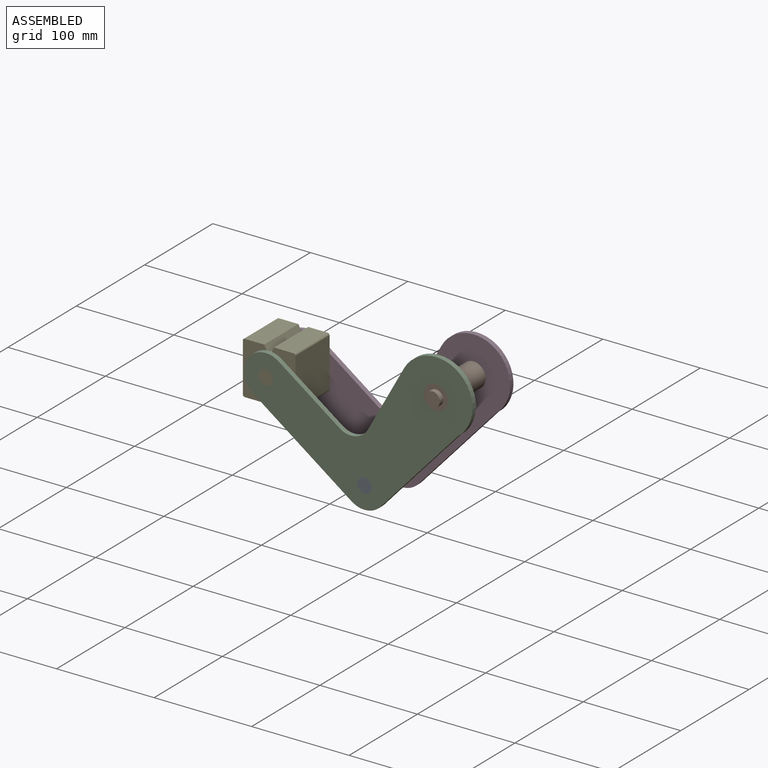
[diagram: assembled view]
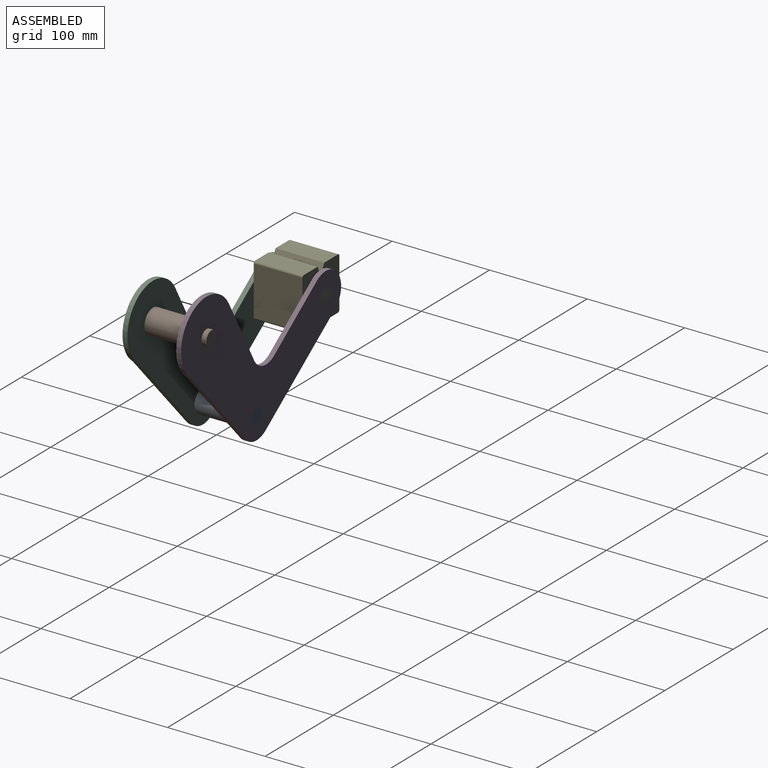
[diagram: assembled view, second angle]
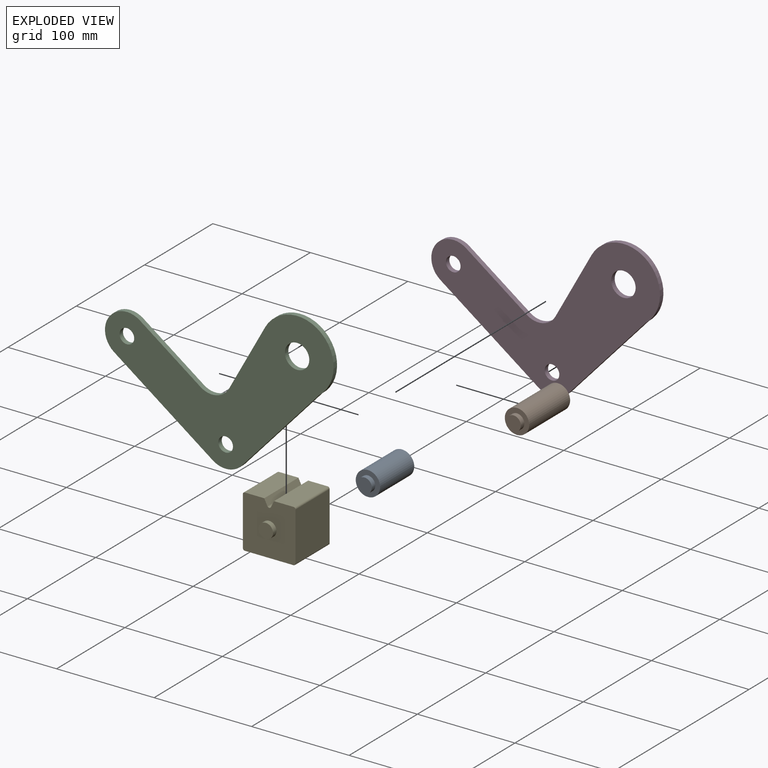
[diagram: exploded view]
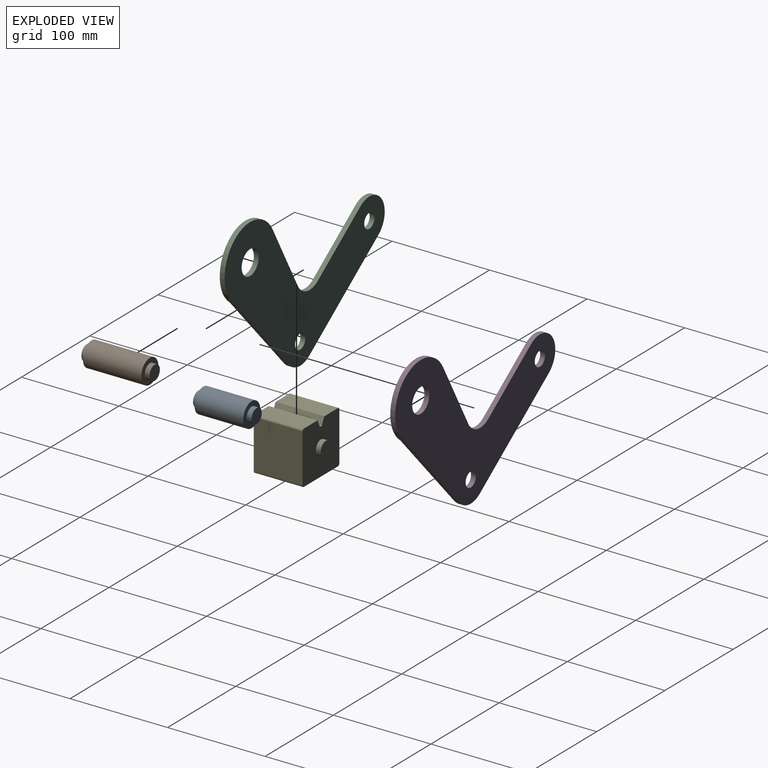
[diagram: exploded view, second angle]
ASSEMBLY  parts=5 mates=2
PART A: 7 faces, bbox 25x60x25 mm
  f0: cylinder r=12.5mm len=50mm, axis (0,-1,0), area 3927mm2, adj f2,f5
  f1: cylinder r=7.5mm len=15mm, axis (0,-1,0), area 235.6mm2, adj f2,f3
  f2: plane 25x25mm, normal (0,-1,0), area 314.2mm2, adj f0,f1
  f3: plane 15x15mm, normal (0,-1,0), area 176.7mm2, adj f1
  f4: cylinder r=7.5mm len=15mm, axis (0,1,0), area 235.6mm2, adj f5,f6
  f5: plane 25x25mm, normal (0,1,0), area 314.2mm2, adj f0,f4
  f6: plane 15x15mm, normal (0,1,0), area 176.7mm2, adj f4
PART B: 7 faces, bbox 25x70x25 mm
  f0: cylinder r=12.5mm len=60mm, axis (0,-1,0), area 4712.4mm2, adj f1,f4
  f1: plane 25x25mm, normal (0,-1,0), area 314.2mm2, adj f0,f2
  f2: cylinder r=7.5mm len=15mm, axis (0,1,0), area 235.6mm2, adj f1,f3
  f3: plane 15x15mm, normal (0,-1,0), area 176.7mm2, adj f2
  f4: plane 25x25mm, normal (0,1,0), area 314.2mm2, adj f0,f5
  f5: cylinder r=7.5mm len=15mm, axis (0,-1,0), area 235.6mm2, adj f4,f6
  f6: plane 15x15mm, normal (0,1,0), area 176.7mm2, adj f5
PART C: 13 faces, bbox 234.5x5x161.3 mm
  f0: plane 86.46x79.17mm, normal (0.74,0,-0.68), area 586.1mm2, adj f1,f9,f11,f12
  f1: cylinder r=37.5mm len=70.3mm, axis (0,-1,0), area 668.1mm2, adj f0,f2,f11,f12
  f2: plane 66.61x36.91mm, normal (-0.87,0,0.48), area 380.8mm2, adj f1,f3,f11,f12
  f3: cylinder r=20mm len=29.22mm, axis (0,-1,0), area 169.1mm2, adj f2,f4,f11,f12
  f4: plane 62.43x45.17mm, normal (0.59,0,0.81), area 385.3mm2, adj f3,f5,f11,f12
  f5: cylinder r=22.5mm len=40.73mm, axis (0,-1,0), area 353.4mm2, adj f4,f6,f11,f12
  f6: plane 101.27x73.27mm, normal (-0.59,0,-0.81), area 625mm2, adj f5,f9,f11,f12
  f7: cylinder r=7.5mm len=15mm, axis (0,-1,0), area 235.6mm2, adj f11,f12
  f8: cylinder r=12.5mm len=25mm, axis (0,-1,0), area 392.7mm2, adj f11,f12
  f9: cylinder r=22.5mm len=29.78mm, axis (0,-1,0), area 163.8mm2, adj f0,f6,f11,f12
  f10: cylinder r=7.5mm len=15mm, axis (0,-1,0), area 235.6mm2, adj f11,f12
  f11: plane 234.54x161.27mm, normal (0,1,0), area 15271.6mm2, adj f0,f1,f2,f3,f4,f5,f6,f7
  f12: plane 234.54x161.27mm, normal (0,-1,0), area 15271.6mm2, adj f0,f1,f2,f3,f4,f5,f6,f7
PART D: same geometry as C
PART E: 18 faces, bbox 54x60x54 mm
  f0: plane 50.01x50mm, normal (0,0,-1), area 2500.3mm2, adj f4,f10,f13,f14
  f1: plane 50.01x50mm, normal (-1,0,0), area 2500.3mm2, adj f4,f10,f14,f15
  f2: plane 50x20mm, normal (0,0,1), area 1000.2mm2, adj f3,f4,f10,f15
  f3: plane 50x6.42mm, normal (0.89,0,0.45), area 359mm2, adj f2,f4,f10,f16
  f4: plane 54.01x54.01mm, normal (0,-1,0), area 2690.1mm2, adj f0,f1,f2,f3,f5,f6,f7,f9
  f5: plane 50x6.42mm, normal (-0.89,0,0.45), area 359mm2, adj f4,f7,f10,f16
  f6: plane 50.01x50mm, normal (1,0,0), area 2500.3mm2, adj f4,f10,f13,f17
  f7: plane 50x20mm, normal (0,0,1), area 1000.2mm2, adj f4,f5,f10,f17
  f8: plane 15x15mm, normal (0,-1,0), area 176.7mm2, adj f9
  f9: cylinder r=7.5mm len=15mm, axis (0,1,0), area 235.6mm2, adj f4,f8
  f10: plane 54.01x54.01mm, normal (0,1,0), area 2690.1mm2, adj f0,f1,f2,f3,f5,f6,f7,f12
  f11: plane 15x15mm, normal (0,1,0), area 176.7mm2, adj f12
  f12: cylinder r=7.5mm len=15mm, axis (0,-1,0), area 235.6mm2, adj f10,f11
  f13: cylinder r=2mm len=50mm, axis (0,-1,0), area 157.1mm2, adj f0,f4,f6,f10
  f14: cylinder r=2mm len=50mm, axis (0,1,0), area 157.1mm2, adj f0,f1,f4,f10
  f15: cylinder r=2mm len=50mm, axis (0,-1,0), area 157.1mm2, adj f1,f2,f4,f10
  f16: cylinder r=2mm len=50mm, axis (0,-1,0), area 221.4mm2, adj f3,f4,f5,f10
  f17: cylinder r=2mm len=50mm, axis (0,1,0), area 157.1mm2, adj f4,f6,f7,f10
PLACE A t=(0,-30,0)mm
PLACE B t=(0,-30,0)mm fixed
PLACE C t=(0,-30,0)mm
PLACE D t=(0,25,0)mm
PLACE E rot(axis=(0,0,1),180deg) t=(-349.09,30,0)mm
MATE revolute E.f9 <-> C.f5  axis (0,-1,0) through (-174.54,-25,-28)mm
MATE fastened A.f0 <-> D.f7  axis (0,1,0) through (-73.27,25,-101.27)mm
